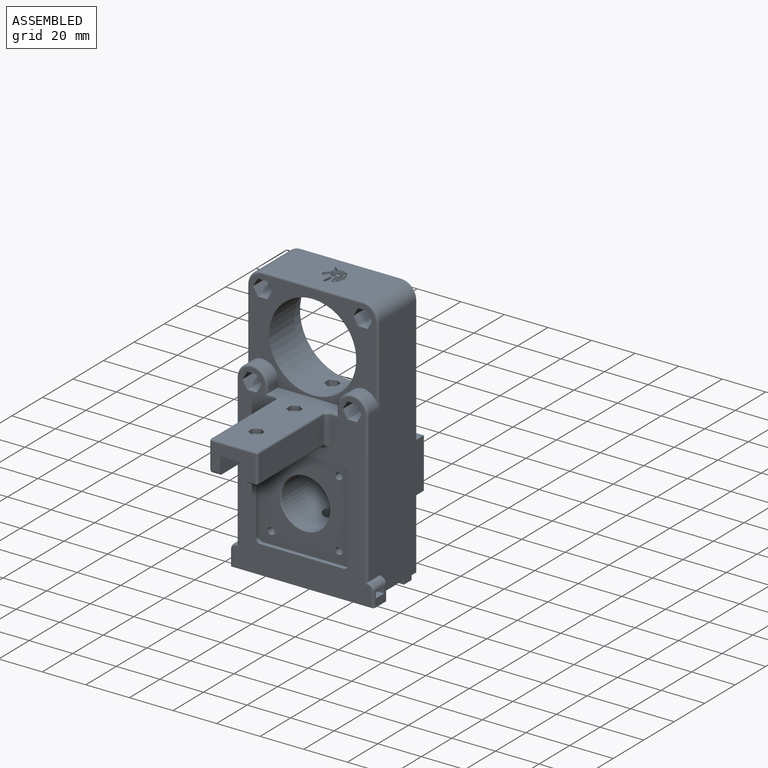
[diagram: assembled view]
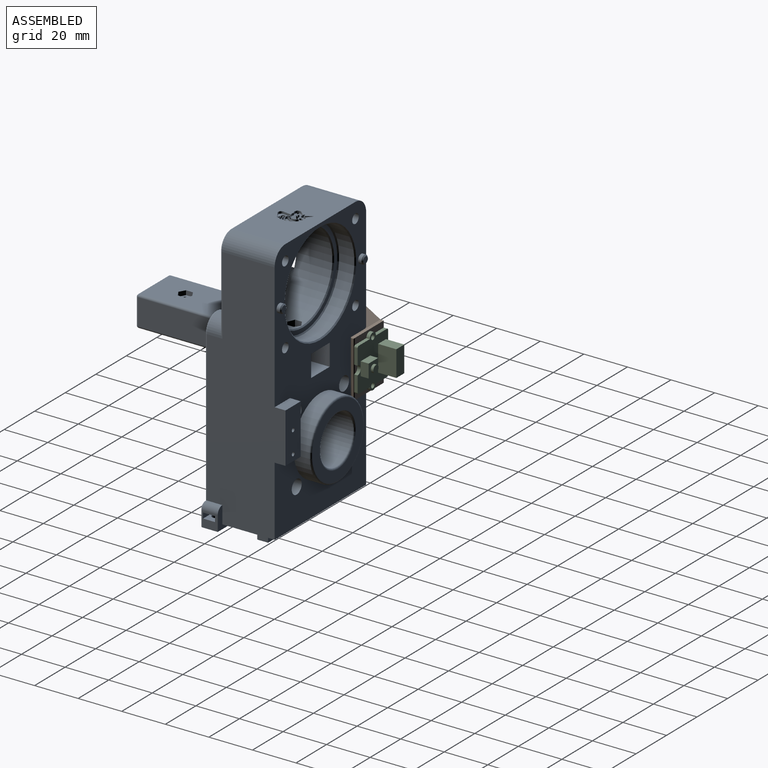
[diagram: assembled view, second angle]
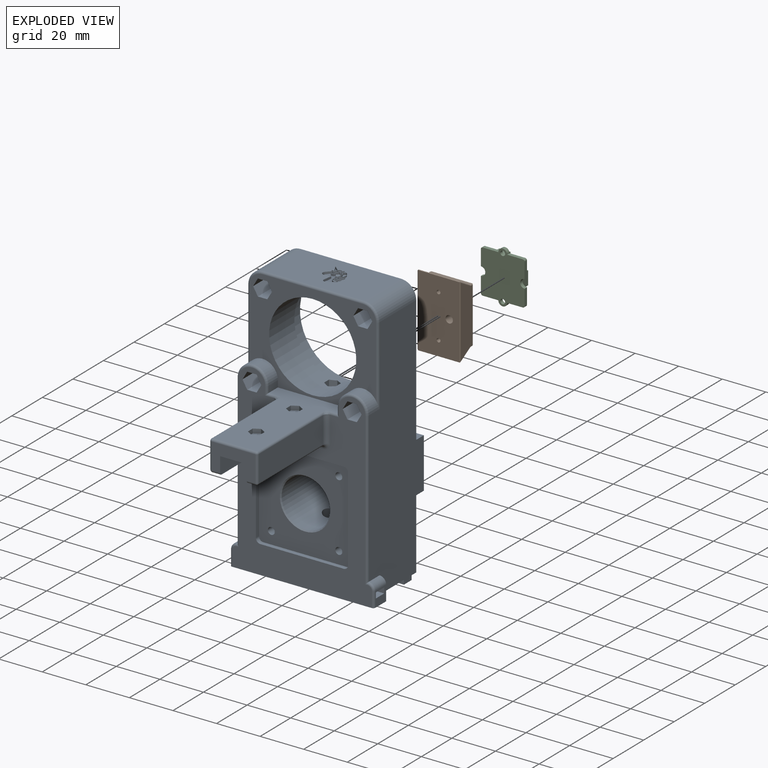
[diagram: exploded view]
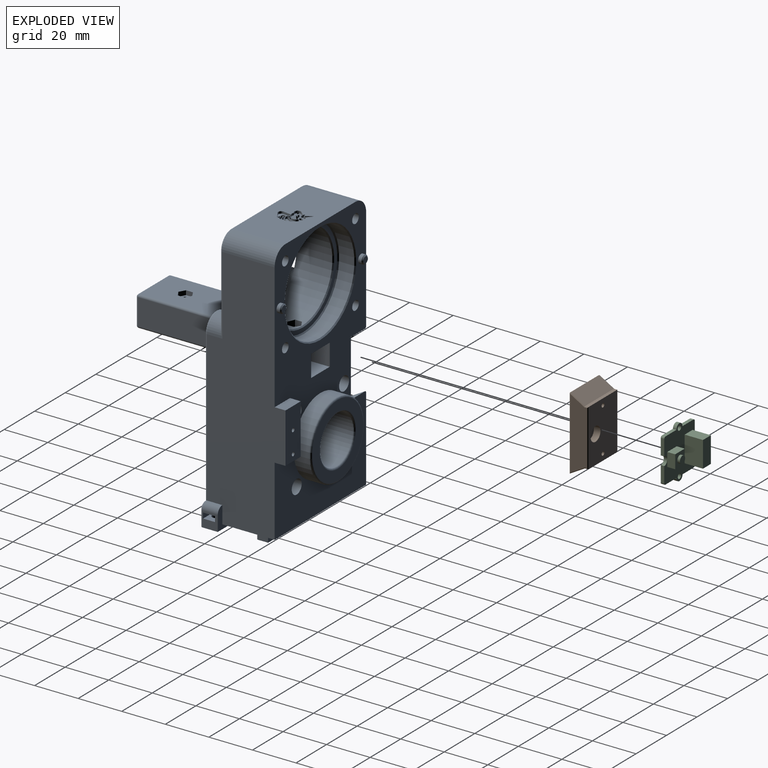
[diagram: exploded view, second angle]
ASSEMBLY  parts=3 mates=2
PART A: 323 faces, bbox 66.5x85x122.6 mm
  f0: plane 46x24mm, normal (0,0,1), area 1037mm2, adj f24,f154,f155,f158,f243,f244,f245,f246
  f1: plane 115x31mm, normal (-1,0,0), area 2955.1mm2, adj f21,f24,f48,f60,f121,f122,f123,f155
  f2: plane 85x64mm, normal (0,-1,0), area 2342mm2, adj f27,f43,f44,f45,f51,f59,f77,f78
  f3: cylinder r=1.6mm len=4mm, axis (0,0,1), area 40.2mm2, adj f10,f25
  f4: plane 3.19x2.75mm, normal (-0.5,0.87,0), area 9.7mm2, adj f5,f9,f10,f41
  f5: plane 3.19x3.18mm, normal (-1,0,0), area 10.1mm2, adj f4,f6,f10,f41
  f6: plane 3.19x2.75mm, normal (-0.5,-0.87,0), area 9.7mm2, adj f5,f7,f10,f41
  f7: plane 3.19x2.75mm, normal (0.5,-0.87,0), area 9.7mm2, adj f6,f8,f10,f41
  f8: plane 3.19x3.18mm, normal (1,0,0), area 10.1mm2, adj f7,f9,f10,f41
  f9: plane 3.19x2.75mm, normal (0.5,0.87,0), area 9.7mm2, adj f4,f8,f10,f41
  f10: plane 6.35x5.5mm, normal (0,0,1), area 18.2mm2, adj f3,f4,f5,f6,f7,f8,f9
  f11: cylinder r=1.6mm len=4mm, axis (0,0,1), area 40.2mm2, adj f18,f25
  f12: plane 2.75x2mm, normal (-0.5,0.87,0), area 6.4mm2, adj f13,f17,f18,f46
  f13: plane 3.18x2mm, normal (-1,0,0), area 6.4mm2, adj f12,f14,f18,f46
  f14: plane 2.75x2mm, normal (-0.5,-0.87,0), area 6.4mm2, adj f13,f15,f18,f46
  f15: plane 2.75x2mm, normal (0.5,-0.87,0), area 6.4mm2, adj f14,f16,f18,f46
  f16: plane 3.18x2mm, normal (1,0,0), area 6.4mm2, adj f15,f17,f18,f46
  f17: plane 2.75x2mm, normal (0.5,0.87,0), area 6.4mm2, adj f12,f16,f18,f46
  f18: plane 6.35x5.5mm, normal (0,0,1), area 18.2mm2, adj f11,f12,f13,f14,f15,f16,f17
  f19: plane 7x7mm, normal (1,0,0), area 35.2mm2, adj f59,f60,f128,f129,f130,f131,f178,f190
  f20: cylinder r=1.7mm len=3.75mm, axis (0,0,-1), area 40.1mm2, adj f59,f131
  f21: plane 60x24mm, normal (0,0,-1), area 1339.7mm2, adj f1,f22,f24,f60,f118,f119,f120,f121
  f22: plane 115x36mm, normal (1,0,0), area 3320mm2, adj f21,f24,f37,f38,f40,f49,f60,f117
  f23: cylinder r=23mm len=46mm, axis (0,1,0), area 1011.6mm2, adj f149,f150
  f24: plane 120x60mm, normal (0,1,0), area 3653.7mm2, adj f0,f1,f21,f22,f25,f26,f27,f28
  f25: plane 77x12.2mm, normal (0,0,-1), area 915.3mm2, adj f3,f11,f24,f26,f28,f57,f145
  f26: plane 77x10mm, normal (-1,0,0), area 680.6mm2, adj f24,f25,f27,f55,f57,f171,f201
  f27: plane 32x12.2mm, normal (0,0,1), area 340.1mm2, adj f2,f24,f26,f28,f126
  f28: plane 77x10mm, normal (1,0,0), area 680.6mm2, adj f24,f25,f27,f54,f57,f165,f197
  f29: cylinder r=11.1mm len=36.7mm, axis (0,1,0), area 2457.3mm2, adj f125,f126,f146,f152
  f30: plane 58x45mm, normal (0,-1,0), area 1013.4mm2, adj f41,f46,f47,f48,f49,f50,f91,f92
  f31: cylinder r=2mm len=4mm, axis (0,-1,0), area 18.8mm2, adj f24,f151
  f32: plane 3x3mm, normal (0,1,0), area 7.1mm2, adj f151
  f33: cylinder r=2mm len=4mm, axis (0,-1,0), area 18.8mm2, adj f24,f147
  f34: plane 3x3mm, normal (0,1,0), area 7.1mm2, adj f147
  f35: cylinder r=17.5mm len=35mm, axis (0,-1,0), area 791.7mm2, adj f24,f153
  f36: plane 33.4x33.4mm, normal (0,1,0), area 431.3mm2, adj f152,f153
  f37: plane 10x5mm, normal (0,0,-1), area 50mm2, adj f22,f24,f39,f40
  f38: plane 10x5mm, normal (0,0,1), area 50mm2, adj f22,f24,f39,f40
  f39: plane 23x5mm, normal (-1,0,0), area 115mm2, adj f24,f37,f38,f40
  f40: plane 23x10mm, normal (0,1,0), area 225.2mm2, adj f22,f37,f38,f39,f62,f64
  f41: cylinder r=20mm len=40mm, axis (0,-1,0), area 2047.2mm2, adj f4,f5,f6,f7,f8,f9,f30,f148
  f42: plane 45x45mm, normal (0,1,0), area 270.2mm2, adj f148,f149
  f43: plane 38.3x2mm, normal (0,0,1), area 76.6mm2, adj f2,f52,f186,f189
  f44: plane 38.3x2mm, normal (1,0,0), area 76.6mm2, adj f2,f52,f186,f187
  f45: plane 38.3x2mm, normal (0,0,-1), area 76.6mm2, adj f2,f52,f187,f188
  f46: plane 51x32mm, normal (0,0,1), area 1039.6mm2, adj f12,f13,f14,f15,f16,f17,f30,f47
  f47: plane 6x3mm, normal (1,0,0), area 18mm2, adj f30,f46,f48,f167
  f48: cylinder r=7mm len=14mm, axis (0,1,0), area 133.4mm2, adj f1,f30,f47,f160,f164
  f49: cylinder r=7mm len=14mm, axis (0,1,0), area 133.4mm2, adj f22,f30,f50,f156,f184
  f50: plane 6x3mm, normal (-1,0,0), area 18mm2, adj f30,f46,f49,f185
  f51: plane 38.3x2mm, normal (-1,0,0), area 76.6mm2, adj f2,f52,f188,f189
  f52: plane 42.3x42.3mm, normal (0,-1,0), area 1331mm2, adj f43,f44,f45,f51,f65,f68,f71,f74
  f53: plane 42x12mm, normal (-1,0,0), area 504mm2, adj f166,f172,f173,f195
  f54: plane 42x3.9mm, normal (0,0,-1), area 163.8mm2, adj f28,f165,f166,f197
  f55: plane 42x3.9mm, normal (0,0,-1), area 163.8mm2, adj f26,f170,f171,f201
  f56: plane 42x12mm, normal (1,0,0), area 504mm2, adj f170,f176,f181,f199
  f57: plane 20x12mm, normal (0,-1,0), area 154.6mm2, adj f25,f26,f28,f165,f171,f172,f176,f177
  f58: plane 7x7mm, normal (-1,0,0), area 35.2mm2, adj f59,f60,f133,f134,f135,f136,f161,f192
  f59: plane 66x8mm, normal (0,0,-1), area 509.4mm2, adj f2,f19,f20,f58,f60,f127,f161,f178
  f60: plane 66x10mm, normal (0,1,0), area 176.1mm2, adj f1,f19,f21,f22,f58,f59,f190,f192
  f61: cone r=0mm half-angle=59deg, axis (0,1,0), area 2.8mm2, adj f62
  f62: cylinder r=0.88mm len=12.75mm, axis (0,1,0), area 70.1mm2, adj f40,f61
  f63: cone r=0mm half-angle=59deg, axis (0,1,0), area 2.8mm2, adj f64
  f64: cylinder r=0.88mm len=12.75mm, axis (0,1,0), area 70.1mm2, adj f40,f63
  f65: cylinder r=1.6mm len=26mm, axis (0,1,0), area 261.4mm2, adj f52,f66
  f66: plane 6.5x6.5mm, normal (0,1,0), area 25.1mm2, adj f65,f67
  f67: cylinder r=3.25mm len=6.5mm, axis (0,1,0), area 81.7mm2, adj f24,f66
  f68: cylinder r=1.6mm len=26mm, axis (0,1,0), area 261.4mm2, adj f52,f69
  f69: plane 6.5x6.5mm, normal (0,1,0), area 25.1mm2, adj f68,f70
  f70: cylinder r=3.25mm len=6.5mm, axis (0,1,0), area 81.7mm2, adj f24,f69
  f71: cylinder r=1.6mm len=26mm, axis (0,1,0), area 261.4mm2, adj f52,f72
  f72: plane 6.5x6.5mm, normal (0,1,0), area 25.1mm2, adj f71,f73
  f73: cylinder r=3.25mm len=6.5mm, axis (0,1,0), area 81.7mm2, adj f24,f72
  f74: cylinder r=1.6mm len=26mm, axis (0,1,0), area 261.4mm2, adj f52,f75
  f75: plane 6.5x6.5mm, normal (0,1,0), area 25.1mm2, adj f74,f76
  f76: cylinder r=3.25mm len=6.5mm, axis (0,1,0), area 81.7mm2, adj f24,f75
  f77: plane 17x4.33mm, normal (0,0,-1), area 73.6mm2, adj f2,f78,f82,f83
  f78: plane 17x3.75mm, normal (0.87,0,-0.5), area 73.6mm2, adj f2,f77,f79,f83
  f79: plane 17x3.75mm, normal (0.87,0,0.5), area 73.6mm2, adj f2,f78,f80,f83
  f80: plane 17x4.33mm, normal (0,0,1), area 73.6mm2, adj f2,f79,f81,f83
  f81: plane 17x3.75mm, normal (-0.87,0,0.5), area 73.6mm2, adj f2,f80,f82,f83
  f82: plane 17x3.75mm, normal (-0.87,0,-0.5), area 73.6mm2, adj f2,f77,f81,f83
  f83: plane 8.66x7.5mm, normal (0,-1,0), area 24.1mm2, adj f77,f78,f79,f80,f81,f82,f116
  f84: plane 17x4.33mm, normal (0,0,1), area 73.6mm2, adj f2,f85,f89,f90
  f85: plane 17x3.75mm, normal (-0.87,0,0.5), area 73.6mm2, adj f2,f84,f86,f90
  f86: plane 17x3.75mm, normal (-0.87,0,-0.5), area 73.6mm2, adj f2,f85,f87,f90
  f87: plane 17x4.33mm, normal (0,0,-1), area 73.6mm2, adj f2,f86,f88,f90
  f88: plane 17x3.75mm, normal (0.87,0,-0.5), area 73.6mm2, adj f2,f87,f89,f90
  f89: plane 17x3.75mm, normal (0.87,0,0.5), area 73.6mm2, adj f2,f84,f88,f90
  f90: plane 8.66x7.5mm, normal (0,-1,0), area 24.1mm2, adj f84,f85,f86,f87,f88,f89,f107
  f91: plane 10x4.33mm, normal (0,0,-1), area 43.3mm2, adj f30,f92,f96,f97
  f92: plane 10x3.75mm, normal (0.87,0,-0.5), area 43.3mm2, adj f30,f91,f93,f97
  f93: plane 10x3.75mm, normal (0.87,0,0.5), area 43.3mm2, adj f30,f92,f94,f97
  f94: plane 10x4.33mm, normal (0,0,1), area 43.3mm2, adj f30,f93,f95,f97
  f95: plane 10x3.75mm, normal (-0.87,0,0.5), area 43.3mm2, adj f30,f94,f96,f97
  f96: plane 10x3.75mm, normal (-0.87,0,-0.5), area 43.3mm2, adj f30,f91,f95,f97
  f97: plane 8.66x7.5mm, normal (0,-1,0), area 24.1mm2, adj f91,f92,f93,f94,f95,f96,f110
  f98: plane 10x4.33mm, normal (0,0,-1), area 43.3mm2, adj f30,f99,f103,f104
  f99: plane 10x3.75mm, normal (0.87,0,-0.5), area 43.3mm2, adj f30,f98,f100,f104
  f100: plane 10x3.75mm, normal (0.87,0,0.5), area 43.3mm2, adj f30,f99,f101,f104
  f101: plane 10x4.33mm, normal (0,0,1), area 43.3mm2, adj f30,f100,f102,f104
  f102: plane 10x3.75mm, normal (-0.87,0,0.5), area 43.3mm2, adj f30,f101,f103,f104
  f103: plane 10x3.75mm, normal (-0.87,0,-0.5), area 43.3mm2, adj f30,f98,f102,f104
  f104: plane 8.66x7.5mm, normal (0,-1,0), area 24.1mm2, adj f98,f99,f100,f101,f102,f103,f113
  f105: cylinder r=2.15mm len=13mm, axis (0,-1,0), area 175.6mm2, adj f24,f106
  f106: plane 5.6x5.6mm, normal (0,-1,0), area 10.1mm2, adj f105,f107
  f107: cylinder r=2.8mm len=5.6mm, axis (0,-1,0), area 35.2mm2, adj f90,f106
  f108: cylinder r=2.15mm len=13mm, axis (0,-1,0), area 175.6mm2, adj f24,f109
  f109: plane 5.6x5.6mm, normal (0,-1,0), area 10.1mm2, adj f108,f110
  f110: cylinder r=2.8mm len=5.6mm, axis (0,-1,0), area 35.2mm2, adj f97,f109
  f111: cylinder r=2.15mm len=13mm, axis (0,-1,0), area 175.6mm2, adj f24,f112
  f112: plane 5.6x5.6mm, normal (0,-1,0), area 10.1mm2, adj f111,f113
  f113: cylinder r=2.8mm len=5.6mm, axis (0,-1,0), area 35.2mm2, adj f104,f112
  f114: cylinder r=2.15mm len=13mm, axis (0,-1,0), area 175.6mm2, adj f24,f115
  f115: plane 5.6x5.6mm, normal (0,-1,0), area 10.1mm2, adj f114,f116
  f116: cylinder r=2.8mm len=5.6mm, axis (0,-1,0), area 35.2mm2, adj f83,f115
  f117: plane 5x5mm, normal (0,0,-1), area 25mm2, adj f22,f118,f119,f120
  f118: plane 5x2mm, normal (0,1,0), area 10mm2, adj f21,f22,f117,f120
  f119: plane 5x2mm, normal (0,-1,0), area 10mm2, adj f21,f22,f117,f120
  f120: plane 5x2mm, normal (-1,0,0), area 10mm2, adj f21,f117,f118,f119
  f121: plane 5x2mm, normal (0,1,0), area 10mm2, adj f1,f21,f122,f124
  f122: plane 5x5mm, normal (0,0,-1), area 25mm2, adj f1,f121,f123,f124
  f123: plane 5x2mm, normal (0,-1,0), area 10mm2, adj f1,f21,f122,f124
  f124: plane 5x2mm, normal (1,0,0), area 10mm2, adj f21,f121,f122,f123
  f125: cylinder r=4mm len=21.65mm, axis (0,0,-1), area 534.6mm2, adj f21,f29
  f126: cylinder r=4mm len=15.65mm, axis (0,0,-1), area 383.8mm2, adj f27,f29
  f127: cylinder r=1.7mm len=3.75mm, axis (0,0,-1), area 40.1mm2, adj f59,f134
  f128: plane 9x2.5mm, normal (0,-1,0), area 22.5mm2, adj f19,f129,f131,f132
  f129: plane 9x5.5mm, normal (0,0,-1), area 49.5mm2, adj f19,f128,f130,f132
  f130: plane 9x2.5mm, normal (0,1,0), area 22.5mm2, adj f19,f129,f131,f132
  f131: plane 9x5.5mm, normal (0,0,1), area 40.4mm2, adj f19,f20,f128,f130,f132
  f132: plane 5.5x2.5mm, normal (1,0,0), area 13.8mm2, adj f128,f129,f130,f131
  f133: plane 9x2.5mm, normal (0,-1,0), area 22.5mm2, adj f58,f134,f136,f137
  f134: plane 9x5.5mm, normal (0,0,1), area 40.4mm2, adj f58,f127,f133,f135,f137
  f135: plane 9x2.5mm, normal (0,1,0), area 22.5mm2, adj f58,f134,f136,f137
  f136: plane 9x5.5mm, normal (0,0,-1), area 49.5mm2, adj f58,f133,f135,f137
  f137: plane 5.5x2.5mm, normal (-1,0,0), area 13.8mm2, adj f133,f134,f135,f136
  f138: plane 2.75x2mm, normal (-0.5,0.87,0), area 6.4mm2, adj f46,f139,f143,f144
  f139: plane 3.18x2mm, normal (-1,0,0), area 6.4mm2, adj f46,f138,f140,f144
  f140: plane 2.75x2mm, normal (-0.5,-0.87,0), area 6.4mm2, adj f46,f139,f141,f144
  f141: plane 2.75x2mm, normal (0.5,-0.87,0), area 6.4mm2, adj f46,f140,f142,f144
  f142: plane 3.18x2mm, normal (1,0,0), area 6.4mm2, adj f46,f141,f143,f144
  f143: plane 2.75x2mm, normal (0.5,0.87,0), area 6.4mm2, adj f46,f138,f142,f144
  f144: plane 6.35x5.5mm, normal (0,0,1), area 18.2mm2, adj f138,f139,f140,f141,f142,f143,f145
  f145: cylinder r=1.6mm len=4mm, axis (0,0,1), area 40.2mm2, adj f25,f144
  f146: cone r=11.1mm half-angle=45deg, axis (0,-1,0), area 50.4mm2, adj f29,f52
  f147: cone r=1.5mm half-angle=45deg, axis (0,-1,0), area 7.8mm2, adj f33,f34
  f148: cone r=20.5mm half-angle=45deg, axis (0,1,0), area 90mm2, adj f41,f42
  f149: cone r=23mm half-angle=45deg, axis (0,1,0), area 101.1mm2, adj f23,f42
  f150: cone r=23.5mm half-angle=45deg, axis (0,1,0), area 103.3mm2, adj f23,f24
  f151: cone r=2mm half-angle=45deg, axis (0,-1,0), area 7.8mm2, adj f31,f32
  f152: torus R=11.9mm, axis (0,-1,0), area 89.9mm2, adj f29,f36
  f153: torus R=16.7mm, axis (0,-1,0), area 135.9mm2, adj f35,f36
  f154: cylinder r=7mm len=24mm, axis (0,-1,0), area 263.9mm2, adj f0,f22,f24,f157
  f155: cylinder r=7mm len=24mm, axis (0,1,0), area 263.9mm2, adj f0,f1,f24,f159
  f156: cylinder r=1mm len=36mm, axis (0,0,-1), area 53.5mm2, adj f22,f30,f49,f157
  f157: torus R=6mm, axis (0,-1,0), area 16.4mm2, adj f30,f154,f156,f158
  f158: cylinder r=1mm len=46mm, axis (1,0,0), area 72.3mm2, adj f0,f30,f157,f159
  f159: torus R=6mm, axis (0,-1,0), area 16.4mm2, adj f30,f155,f158,f160
  f160: cylinder r=1mm len=36mm, axis (0,0,1), area 53.5mm2, adj f1,f30,f48,f159
  f161: cylinder r=1mm len=7mm, axis (0,0,1), area 11mm2, adj f2,f58,f59,f193
  f162: cylinder r=1mm len=1mm, axis (1,0,0), area 0.6mm2, adj f2,f163,f193
  f163: cylinder r=1mm len=70mm, axis (0,0,1), area 109mm2, adj f1,f2,f162,f164
  f164: torus R=6mm, axis (0,-1,0), area 32.8mm2, adj f2,f48,f163,f167
  f165: cylinder r=1mm len=3.9mm, axis (-1,0,0), area 6.1mm2, adj f28,f54,f57,f168
  f166: cylinder r=1mm len=42mm, axis (0,1,0), area 66mm2, adj f53,f54,f168,f196
  f167: cylinder r=1mm len=4mm, axis (0,0,-1), area 5.3mm2, adj f2,f47,f164,f169
  f168: sphere r=1mm, area 1.6mm2, adj f165,f166,f172
  f169: cylinder r=1mm len=7mm, axis (1,0,0), area 7mm2, adj f2,f46,f167,f194
  f170: cylinder r=1mm len=42mm, axis (0,-1,0), area 66mm2, adj f55,f56,f174,f200
  f171: cylinder r=1mm len=3.9mm, axis (-1,0,0), area 6.1mm2, adj f26,f55,f57,f174
  f172: cylinder r=1mm len=12mm, axis (0,0,1), area 18.8mm2, adj f53,f57,f168,f175
  f173: cylinder r=1mm len=45mm, axis (0,-1,0), area 67.7mm2, adj f46,f53,f175,f194
  f174: sphere r=1mm, area 1.6mm2, adj f170,f171,f176
  f175: sphere r=1mm, area 1.6mm2, adj f172,f173,f177
  f176: cylinder r=1mm len=12mm, axis (0,0,-1), area 18.8mm2, adj f56,f57,f174,f179
  f177: cylinder r=1mm len=20mm, axis (1,0,0), area 31.4mm2, adj f46,f57,f175,f179
  f178: cylinder r=1mm len=7mm, axis (0,0,-1), area 11mm2, adj f2,f19,f59,f191
  f179: sphere r=1mm, area 1.6mm2, adj f176,f177,f181
  f180: cylinder r=1mm len=1mm, axis (1,0,0), area 0.6mm2, adj f2,f182,f191
  f181: cylinder r=1mm len=45mm, axis (0,1,0), area 67.7mm2, adj f46,f56,f179,f198
  f182: cylinder r=1mm len=70mm, axis (0,0,-1), area 109mm2, adj f2,f22,f180,f184
  f183: cylinder r=1mm len=7mm, axis (1,0,0), area 7mm2, adj f2,f46,f185,f198
  f184: torus R=6mm, axis (0,-1,0), area 32.8mm2, adj f2,f49,f182,f185
  f185: cylinder r=1mm len=4mm, axis (0,0,1), area 5.3mm2, adj f2,f50,f183,f184
  f186: cylinder r=2mm len=2mm, axis (0,1,0), area 6.3mm2, adj f2,f43,f44,f52
  f187: cylinder r=2mm len=2mm, axis (0,-1,0), area 6.3mm2, adj f2,f44,f45,f52
  f188: cylinder r=2mm len=2mm, axis (0,1,0), area 6.3mm2, adj f2,f45,f51,f52
  f189: cylinder r=2mm len=2mm, axis (0,-1,0), area 6.3mm2, adj f2,f43,f51,f52
  f190: cylinder r=3mm len=7mm, axis (0,1,0), area 33mm2, adj f19,f22,f60,f191
  f191: torus R=2mm, axis (0,-1,0), area 6.5mm2, adj f2,f178,f180,f190
  f192: cylinder r=3mm len=7mm, axis (0,1,0), area 33mm2, adj f1,f58,f60,f193
  f193: torus R=2mm, axis (0,-1,0), area 6.5mm2, adj f2,f161,f162,f192
  f194: bspline ~3x3mm, area 4.1mm2, adj f169,f173,f195
  f195: cylinder r=2mm len=12mm, axis (0,0,1), area 37.7mm2, adj f2,f53,f194,f196
  f196: torus R=3mm, axis (0,-1,0), area 8.5mm2, adj f2,f166,f195,f197
  f197: cylinder r=2mm len=3.9mm, axis (-1,0,0), area 12.3mm2, adj f2,f28,f54,f196
  f198: bspline ~3x3mm, area 4.1mm2, adj f181,f183,f199
  f199: cylinder r=2mm len=12mm, axis (0,0,-1), area 37.7mm2, adj f2,f56,f198,f200
  f200: torus R=3mm, axis (0,-1,0), area 8.5mm2, adj f2,f170,f199,f201
  f201: cylinder r=2mm len=3.9mm, axis (-1,0,0), area 12.3mm2, adj f2,f26,f55,f200
  f202: plane 10x5.5mm, normal (0,1,0), area 45.9mm2, adj f1,f203,f205,f206,f208
  f203: plane 10x2.5mm, normal (0,0,-1), area 25mm2, adj f1,f202,f204,f206
  f204: plane 10x5.5mm, normal (0,-1,0), area 45.9mm2, adj f1,f203,f205,f206,f213
  f205: plane 10x2.5mm, normal (0,0,1), area 25mm2, adj f1,f202,f204,f206
  f206: plane 5.5x2.5mm, normal (-1,0,0), area 13.7mm2, adj f202,f203,f204,f205
  f207: cone r=0mm half-angle=59deg, axis (0,1,0), area 10.6mm2, adj f208
  f208: cylinder r=1.7mm len=3.75mm, axis (0,1,0), area 40.1mm2, adj f202,f207
  f209: plane 9.5x7mm, normal (0,-0.5,0.87), area 76.8mm2, adj f24,f210,f212,f214
  f210: plane 34.08x9.5mm, normal (0,1,0), area 314.7mm2, adj f209,f211,f212,f213,f215
  f211: plane 9.5x7mm, normal (0,-0.5,-0.87), area 76.8mm2, adj f24,f210,f212,f216
  f212: plane 34.08x7mm, normal (-1,0,0), area 210.3mm2, adj f24,f209,f210,f211
  f213: cylinder r=1.7mm len=3.4mm, axis (0,1,0), area 18.7mm2, adj f204,f210
  f214: plane 7.5x4.91mm, normal (-0.71,-0.35,0.61), area 5.9mm2, adj f1,f24,f209,f215
  f215: plane 35.82x0.5mm, normal (-0.71,0.71,0), area 24.7mm2, adj f1,f210,f214,f216
  f216: plane 7.5x4.91mm, normal (-0.71,-0.35,-0.61), area 5.9mm2, adj f1,f24,f211,f215
  f217: plane 1x0.1mm, normal (0.99,-0.14,0), area 0.1mm2, adj f218,f268,f269,f322
  f218: cylinder r=0.6mm len=1mm, axis (0,0,1), area 0.8mm2, adj f217,f219,f269,f322
  f219: plane 1x0.1mm, normal (-0.17,0.99,0), area 0.1mm2, adj f218,f268,f269,f322
  f220: cylinder r=1.03mm len=1mm, axis (0,0,1), area 0.3mm2, adj f221,f266,f269,f270
  f221: plane 1x0.23mm, normal (0.74,0.67,0), area 0.3mm2, adj f220,f222,f269,f270
  f222: plane 1x0.07mm, normal (0.67,-0.74,0), area 0.1mm2, adj f221,f223,f269,f270
  f223: plane 1x0.23mm, normal (-0.74,-0.67,0), area 0.3mm2, adj f222,f224,f269,f270
  f224: cylinder r=1.03mm len=1mm, axis (0,0,1), area 0.4mm2, adj f223,f225,f269,f270
  f225: plane 1x0.29mm, normal (0.96,0.27,0), area 0.3mm2, adj f224,f226,f269,f270
  f226: plane 1x0.1mm, normal (0.27,-0.96,0), area 0.1mm2, adj f225,f227,f269,f270
  f227: plane 1x0.29mm, normal (-0.96,-0.27,0), area 0.3mm2, adj f226,f228,f269,f270
  f228: cylinder r=1.03mm len=1mm, axis (0,0,1), area 0.4mm2, adj f227,f229,f269,f270
  f229: plane 1x0.28mm, normal (0.99,-0.11,0), area 0.3mm2, adj f228,f230,f269,f270
  f230: plane 1x0.1mm, normal (-0.11,-0.99,0), area 0.1mm2, adj f229,f231,f269,f270
  f231: plane 1x0.28mm, normal (-0.99,0.11,0), area 0.3mm2, adj f230,f232,f269,f270
  f232: cylinder r=1.03mm len=1mm, axis (0,0,1), area 0.3mm2, adj f231,f233,f269,f270
  f233: plane 1x0.21mm, normal (0.77,-0.64,0), area 0.3mm2, adj f232,f234,f269,f270
  f234: plane 1x0.08mm, normal (-0.64,-0.77,0), area 0.1mm2, adj f233,f235,f269,f270
  f235: plane 1x0.2mm, normal (-0.77,0.64,0), area 0.3mm2, adj f234,f236,f269,f270
  f236: cylinder r=1.03mm len=1mm, axis (0,0,1), area 0.2mm2, adj f235,f237,f269,f270
  f237: plane 1x0.14mm, normal (-0.7,0.71,0), area 0.2mm2, adj f236,f238,f269,f270
  f238: cylinder r=0.83mm len=1.38mm, axis (0,0,1), area 1.7mm2, adj f237,f239,f269,f270
  f239: plane 1x0.19mm, normal (0.3,0.95,0), area 0.2mm2, adj f238,f240,f269,f270
  f240: cylinder r=1.03mm len=1mm, axis (0,0,1), area 0.1mm2, adj f239,f241,f269,f270
  f241: plane 1x0.27mm, normal (0.55,0.83,0), area 0.3mm2, adj f240,f242,f269,f270
  f242: plane 1x0.08mm, normal (0.83,-0.55,0), area 0.1mm2, adj f241,f266,f269,f270
  f243: cylinder r=3.13mm len=1mm, axis (0,0,1), area 0.1mm2, adj f0,f244,f267,f269
  f244: cylinder r=2.1mm len=2.6mm, axis (0,0,1), area 3.1mm2, adj f0,f243,f245,f269
  f245: plane 1.86x1.81mm, normal (0.72,-0.7,0), area 2.6mm2, adj f0,f244,f246,f269
  f246: cylinder r=1.43mm len=2.43mm, axis (0,0,1), area 4mm2, adj f0,f245,f247,f269
  f247: plane 1x0.65mm, normal (-0.43,0.9,0), area 0.7mm2, adj f0,f246,f248,f269
  f248: cylinder r=1.8mm len=1.84mm, axis (0,0,1), area 1.9mm2, adj f0,f247,f249,f269
  f249: plane 3.88x1mm, normal (0.99,-0.15,0), area 3.9mm2, adj f0,f248,f250,f269
  f250: cylinder r=1.28mm len=1.95mm, axis (0,0,1), area 2.9mm2, adj f0,f249,f251,f269
  f251: plane 3.39x2.1mm, normal (-0.53,0.85,0), area 4mm2, adj f0,f250,f252,f269
  f252: cylinder r=0.98mm len=1mm, axis (0,0,1), area 0.9mm2, adj f0,f251,f253,f269
  f253: cylinder r=1.52mm len=1mm, axis (0,0,1), area 0.8mm2, adj f0,f252,f254,f269
  f254: cylinder r=0.27mm len=1mm, axis (0,0,1), area 0.8mm2, adj f0,f253,f255,f269
  f255: plane 1x0.67mm, normal (0.26,0.97,0), area 0.7mm2, adj f0,f254,f256,f269
  f256: cylinder r=1.37mm len=2.04mm, axis (0,0,1), area 2.3mm2, adj f0,f255,f257,f269
  f257: cylinder r=1.24mm len=1mm, axis (0,0,1), area 0.6mm2, adj f0,f256,f258,f269
  f258: cylinder r=1.16mm len=1.7mm, axis (0,0,1), area 1.9mm2, adj f0,f257,f259,f269
  f259: cylinder r=1.65mm len=1.52mm, axis (0,0,1), area 2mm2, adj f0,f258,f260,f269
  f260: plane 1x0.72mm, normal (0.63,0.77,0), area 0.9mm2, adj f0,f259,f261,f269
  f261: cylinder r=0.45mm len=1mm, axis (0,0,1), area 1mm2, adj f0,f260,f262,f269
  f262: plane 1x0.33mm, normal (-1,0,0), area 0.3mm2, adj f0,f261,f263,f269
  f263: cylinder r=2.01mm len=1.39mm, axis (0,0,1), area 1.4mm2, adj f0,f262,f264,f269
  f264: cylinder r=1.89mm len=3.46mm, axis (0,0,1), area 4.4mm2, adj f0,f263,f265,f269
  f265: cylinder r=1.36mm len=1mm, axis (0,0,1), area 0.6mm2, adj f0,f264,f267,f269
  f266: plane 1x0.26mm, normal (-0.55,-0.83,0), area 0.3mm2, adj f220,f242,f269,f270
  f267: cylinder r=0.69mm len=1mm, axis (0,0,1), area 1.1mm2, adj f0,f243,f265,f269
  f268: cylinder r=0.5mm len=1mm, axis (0,0,1), area 0.6mm2, adj f217,f219,f269,f322
  f269: plane 10.22x9.46mm, normal (0,0,1), area 39.7mm2, adj f217,f218,f219,f220,f221,f222,f223,f224
  f270: plane 1.97x1.04mm, normal (0,0,1), area 0.5mm2, adj f220,f221,f222,f223,f224,f225,f226,f227
  f271: cylinder r=1.4mm len=1.33mm, axis (0,0,1), area 1.6mm2, adj f0,f272,f276,f277
  f272: cylinder r=1mm len=1.02mm, axis (0,0,1), area 1.1mm2, adj f0,f271,f273,f277
  f273: cylinder r=0.61mm len=1mm, axis (0,0,1), area 1mm2, adj f0,f272,f274,f277
  f274: cylinder r=1.9mm len=2.55mm, axis (0,0,1), area 3.3mm2, adj f0,f273,f275,f277
  f275: cylinder r=1.17mm len=1mm, axis (0,0,1), area 0.9mm2, adj f0,f274,f276,f277
  f276: cylinder r=1.07mm len=1.74mm, axis (0,0,1), area 2mm2, adj f0,f271,f275,f277
  f277: plane 3.57x2.57mm, normal (0,0,1), area 4mm2, adj f271,f272,f273,f274,f275,f276
  f278: cylinder r=1.16mm len=2.01mm, axis (0,0,1), area 2.5mm2, adj f0,f279,f281,f282
  f279: cylinder r=0.11mm len=1mm, axis (0,0,1), area 0.2mm2, adj f0,f278,f280,f282
  f280: cylinder r=2.93mm len=1.52mm, axis (0,0,1), area 1.8mm2, adj f0,f279,f281,f282
  f281: cylinder r=0.89mm len=1mm, axis (0,0,1), area 0.9mm2, adj f0,f278,f280,f282
  f282: plane 2.03x1.51mm, normal (0,0,1), area 1.9mm2, adj f278,f279,f280,f281
  f283: cylinder r=0.08mm len=1mm, axis (0,0,1), area 0.2mm2, adj f0,f284,f286,f287
  f284: plane 2.97x1.74mm, normal (0.86,0.5,0), area 3.4mm2, adj f0,f283,f285,f287
  f285: cylinder r=1.2mm len=1.08mm, axis (0,0,1), area 1.3mm2, adj f0,f284,f286,f287
  f286: plane 2.23x1.99mm, normal (-0.67,-0.75,0), area 3mm2, adj f0,f283,f285,f287
  f287: plane 3.09x2.36mm, normal (0,0,1), area 2.2mm2, adj f283,f284,f285,f286
  f288: cylinder r=0.39mm len=1mm, axis (0,0,1), area 0.5mm2, adj f0,f289,f295,f296
  f289: cylinder r=0.69mm len=1mm, axis (0,0,1), area 1.2mm2, adj f0,f288,f290,f296
  f290: cylinder r=0.47mm len=1mm, axis (0,0,1), area 1mm2, adj f0,f289,f291,f296
  f291: cylinder r=1.32mm len=1mm, axis (0,0,1), area 0.8mm2, adj f0,f290,f292,f296
  f292: cylinder r=0.87mm len=1mm, axis (0,0,1), area 0.9mm2, adj f0,f291,f293,f296
  f293: cylinder r=1.23mm len=1mm, axis (0,0,1), area 0.7mm2, adj f0,f292,f294,f296
  f294: cylinder r=1.97mm len=1.29mm, axis (0,0,1), area 1.5mm2, adj f0,f293,f295,f296
  f295: plane 1x0.9mm, normal (0.1,-0.99,0), area 0.9mm2, adj f0,f288,f294,f296
  f296: plane 2.62x1.89mm, normal (0,0,1), area 2.2mm2, adj f288,f289,f290,f291,f292,f293,f294,f295
  f297: cylinder r=1.65mm len=1mm, axis (0,0,1), area 0.6mm2, adj f0,f298,f305,f306
  f298: cylinder r=0.96mm len=1.49mm, axis (0,0,1), area 1.7mm2, adj f0,f297,f299,f306
  f299: cylinder r=1.04mm len=1mm, axis (0,0,1), area 0.9mm2, adj f0,f298,f300,f306
  f300: cylinder r=0.89mm len=1mm, axis (0,0,1), area 1mm2, adj f0,f299,f301,f306
  f301: cylinder r=0.59mm len=1mm, axis (0,0,1), area 0.8mm2, adj f0,f300,f302,f306
  f302: plane 1x0.9mm, normal (-0.1,0.99,0), area 0.9mm2, adj f0,f301,f303,f306
  f303: cylinder r=1.77mm len=1.8mm, axis (0,0,1), area 2.6mm2, adj f0,f302,f304,f306
  f304: cylinder r=2.32mm len=1.11mm, axis (0,0,1), area 1.2mm2, adj f0,f303,f305,f306
  f305: cylinder r=2.86mm len=2.53mm, axis (0,0,1), area 3.7mm2, adj f0,f297,f304,f306
  f306: plane 4.34x3.75mm, normal (0,0,1), area 4mm2, adj f297,f298,f299,f300,f301,f302,f303,f304
  f307: cylinder r=2.09mm len=3.56mm, axis (0,0,1), area 4.3mm2, adj f0,f308,f312,f313
  f308: cylinder r=1.81mm len=1.53mm, axis (0,0,1), area 1.7mm2, adj f0,f307,f309,f313
  f309: cylinder r=2.95mm len=3.08mm, axis (0,0,1), area 3.3mm2, adj f0,f308,f310,f313
  f310: cylinder r=1.7mm len=1.07mm, axis (0,0,1), area 1.6mm2, adj f0,f309,f311,f313
  f311: cylinder r=0.74mm len=1mm, axis (0,0,1), area 0.7mm2, adj f0,f310,f312,f313
  f312: cylinder r=1.36mm len=1mm, axis (0,0,1), area 1.1mm2, adj f0,f307,f311,f313
  f313: plane 4.69x2.43mm, normal (0,0,1), area 6.4mm2, adj f307,f308,f309,f310,f311,f312
  f314: cylinder r=0.65mm len=1.06mm, axis (0,0,1), area 1.4mm2, adj f0,f315,f320,f321
  f315: plane 1x0.29mm, normal (-0.63,-0.77,0), area 0.4mm2, adj f0,f314,f316,f321
  f316: cylinder r=1.45mm len=1.61mm, axis (0,0,1), area 2mm2, adj f0,f315,f317,f321
  f317: cylinder r=2.66mm len=4.55mm, axis (0,0,1), area 5.9mm2, adj f0,f316,f318,f321
  f318: cylinder r=3.15mm len=2.62mm, axis (0,0,1), area 2.9mm2, adj f0,f317,f319,f321
  f319: cylinder r=2.01mm len=1mm, axis (0,0,1), area 0.8mm2, adj f0,f318,f320,f321
  f320: plane 1x0.41mm, normal (1,0,0), area 0.4mm2, adj f0,f314,f319,f321
  f321: plane 4.57x3.79mm, normal (0,0,1), area 6mm2, adj f314,f315,f316,f317,f318,f319,f320
  f322: plane 0.52x0.51mm, normal (0,0,1), area 0.1mm2, adj f217,f218,f219,f268
PART B: 29 faces, bbox 20x33.6x8.8 mm
  f0: plane 18.7x1.55mm, normal (0,-1,0), area 29mm2, adj f1,f5,f17,f23
  f1: plane 18.7x6.74mm, normal (0,-0.87,0.5), area 145.5mm2, adj f0,f18,f24,f25
  f2: plane 33.28x18.7mm, normal (0,0,-1), area 608.5mm2, adj f8,f11,f12,f16,f22,f25,f27
  f3: plane 18.7x6.74mm, normal (0,0.87,0.5), area 145.5mm2, adj f4,f14,f20,f27
  f4: plane 18.7x1.55mm, normal (0,1,0), area 29mm2, adj f3,f5,f13,f19
  f5: plane 25.8x18.7mm, normal (0,0,1), area 444.5mm2, adj f0,f4,f10,f11,f12,f15,f21
  f6: plane 32.84x7.95mm, normal (1,0,0), area 225.6mm2, adj f13,f14,f15,f16,f17,f18
  f7: plane 30.42x6.55mm, normal (-1,0,0), area 174.9mm2, adj f19,f20,f21,f22,f23,f24
  f8: cylinder r=1.7mm len=5.55mm, axis (0,0,1), area 59.3mm2, adj f2,f9
  f9: plane 6.5x6.5mm, normal (0,0,1), area 24.1mm2, adj f8,f10
  f10: cylinder r=3.25mm len=6.5mm, axis (0,0,1), area 61.3mm2, adj f5,f9
  f11: cylinder r=0.88mm len=8.55mm, axis (0,0,1), area 47mm2, adj f2,f5
  f12: cylinder r=0.88mm len=8.55mm, axis (0,0,1), area 47mm2, adj f2,f5
  f13: plane 1.63x0.3mm, normal (0.71,0.71,0), area 0.6mm2, adj f4,f6,f14,f15
  f14: plane 6.87x4.19mm, normal (0.71,0.61,0.35), area 3.3mm2, adj f3,f6,f13,f16,f27
  f15: plane 25.8x0.3mm, normal (0.71,0,0.71), area 10.8mm2, adj f5,f6,f13,f17
  f16: plane 33.43x0.3mm, normal (0.71,0,-0.71), area 14.1mm2, adj f2,f6,f14,f18,f25,f27
  f17: plane 1.63x0.3mm, normal (0.71,-0.71,0), area 0.6mm2, adj f0,f6,f15,f18
  f18: plane 6.87x4.19mm, normal (0.71,-0.61,0.35), area 3.3mm2, adj f1,f6,f16,f17,f25
  f19: cylinder r=1mm len=1.82mm, axis (0,0,1), area 1.9mm2, adj f4,f7,f20,f21
  f20: cylinder r=1mm len=7.47mm, axis (0,-0.5,0.87), area 11.3mm2, adj f3,f7,f19,f28
  f21: cylinder r=1mm len=25.8mm, axis (0,-1,0), area 39mm2, adj f5,f7,f19,f23
  f22: cylinder r=1mm len=33.28mm, axis (0,1,0), area 50mm2, adj f2,f7,f26,f28
  f23: cylinder r=1mm len=1.82mm, axis (0,0,-1), area 1.9mm2, adj f0,f7,f21,f24
  f24: cylinder r=1mm len=7.47mm, axis (0,-0.5,-0.87), area 11.3mm2, adj f1,f7,f23,f26
  f25: plane 18.83x0.26mm, normal (0,-0.87,-0.5), area 5.6mm2, adj f1,f2,f16,f18,f26
  f26: bspline ~1.6x1.01mm, area 0.2mm2, adj f22,f24,f25
  f27: plane 18.83x0.26mm, normal (0,0.87,-0.5), area 5.6mm2, adj f2,f3,f14,f16,f28
  f28: bspline ~1.6x1.01mm, area 0.2mm2, adj f20,f22,f27
PART C: 33 faces, bbox 24x20x10 mm
  f0: plane 24x20mm, normal (0,0,1), area 292.7mm2, adj f1,f2,f3,f4,f5,f6,f7,f8
  f1: plane 7.2x1.6mm, normal (0,1,0), area 11.5mm2, adj f0,f2,f15,f30
  f2: cylinder r=2mm len=4mm, axis (0,0,1), area 10.1mm2, adj f0,f1,f3,f15,f21
  f3: plane 7.2x1.6mm, normal (0,1,0), area 11.5mm2, adj f0,f2,f15,f27
  f4: plane 7.2x1.6mm, normal (-1,0,0), area 11.5mm2, adj f0,f5,f15,f27
  f5: cylinder r=2mm len=4mm, axis (0,0,1), area 10.1mm2, adj f0,f4,f6,f15
  f6: plane 7.2x1.6mm, normal (-1,0,0), area 11.5mm2, adj f0,f5,f15,f28
  f7: plane 7.2x1.6mm, normal (0,-1,0), area 11.5mm2, adj f0,f8,f15,f28
  f8: cylinder r=2mm len=4mm, axis (0,0,1), area 10.1mm2, adj f0,f7,f9,f15
  f9: plane 7.2x1.6mm, normal (0,-1,0), area 11.5mm2, adj f0,f8,f15,f29
  f10: plane 7.2x1.6mm, normal (1,0,0), area 11.5mm2, adj f0,f11,f15,f29
  f11: cylinder r=2mm len=4mm, axis (0,0,1), area 10.1mm2, adj f0,f10,f13,f15
  f12: cylinder r=1.1mm len=2.2mm, axis (0,0,1), area 11.1mm2, adj f0,f15
  f13: plane 7.2x1.6mm, normal (1,0,0), area 11.5mm2, adj f0,f11,f15,f30
  f14: cylinder r=1.1mm len=2.2mm, axis (0,0,1), area 11.1mm2, adj f0,f15
  f15: plane 24x20mm, normal (0,0,-1), area 391.8mm2, adj f1,f2,f3,f4,f5,f6,f7,f8
  f16: plane 11.9x8.4mm, normal (0,1,0), area 100mm2, adj f0,f17,f19,f20,f21
  f17: plane 8.4x5.2mm, normal (-1,0,0), area 43.7mm2, adj f0,f16,f18,f20
  f18: plane 11.9x8.4mm, normal (0,-1,0), area 100mm2, adj f0,f17,f19,f20
  f19: plane 8.4x5.2mm, normal (1,0,0), area 43.7mm2, adj f0,f16,f18,f20
  f20: plane 11.9x5.2mm, normal (0,0,1), area 61.9mm2, adj f16,f17,f18,f19
  f21: plane 2.86x0.6mm, normal (0,0,-1), area 1.2mm2, adj f2,f16
  f22: plane 6.2x3.65mm, normal (-1,0,0), area 22.6mm2, adj f0,f23,f25,f26
  f23: plane 6.2x3.65mm, normal (0,-1,0), area 22.6mm2, adj f0,f22,f24,f26
  f24: plane 6.2x3.65mm, normal (1,0,0), area 22.6mm2, adj f0,f23,f25,f26
  f25: plane 6.2x3.65mm, normal (0,1,0), area 22.6mm2, adj f0,f22,f24,f26
  f26: plane 6.2x6.2mm, normal (0,0,1), area 29.4mm2, adj f22,f23,f24,f25,f31
  f27: cylinder r=0.8mm len=1.6mm, axis (0,0,1), area 2mm2, adj f0,f3,f4,f15
  f28: cylinder r=0.8mm len=1.6mm, axis (0,0,1), area 2mm2, adj f0,f6,f7,f15
  f29: cylinder r=0.8mm len=1.6mm, axis (0,0,1), area 2mm2, adj f0,f9,f10,f15
  f30: cylinder r=0.8mm len=1.6mm, axis (0,0,1), area 2mm2, adj f0,f1,f13,f15
  f31: cylinder r=1.7mm len=3.4mm, axis (0,0,-1), area 12.8mm2, adj f26,f32
  f32: plane 3.4x3.4mm, normal (0,0,1), area 9.1mm2, adj f31
PLACE A t=(0,5.15,0)mm
PLACE B rot(axis=(-1,0,0),90deg) t=(-40,5.92,-8)mm
PLACE C rot(axis=(-0.58,0.58,0.58),120deg) t=(-29.9,8.3,-8)mm
MATE fastened B.f8 <-> A.f207  axis (0,-1,0) through (-25,-1.85,-8)mm
MATE fastened C.f14 <-> B.f11  axis (0,-1,0) through (-29.9,6.7,-18)mm
